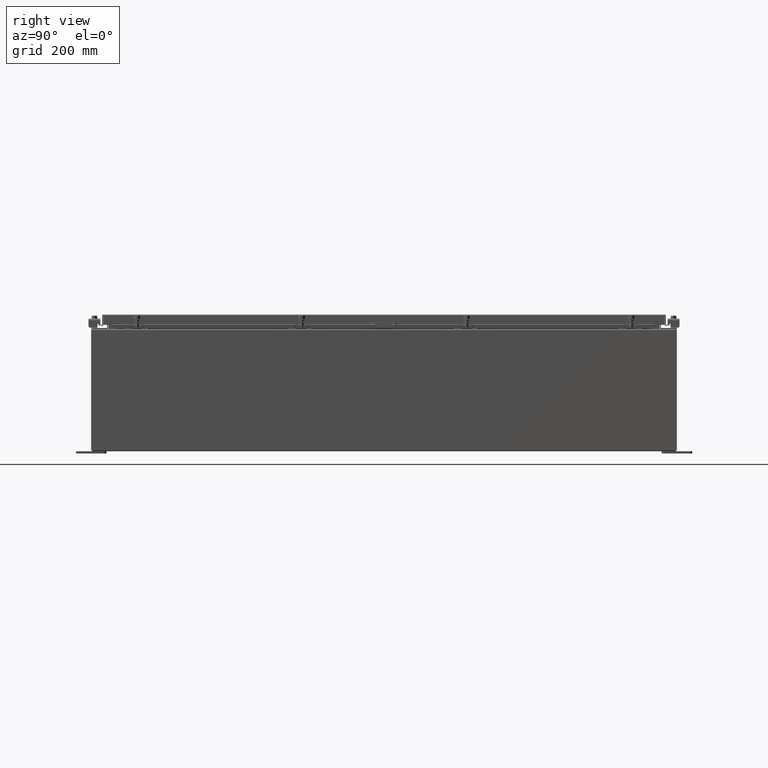
[diagram: clean part render]
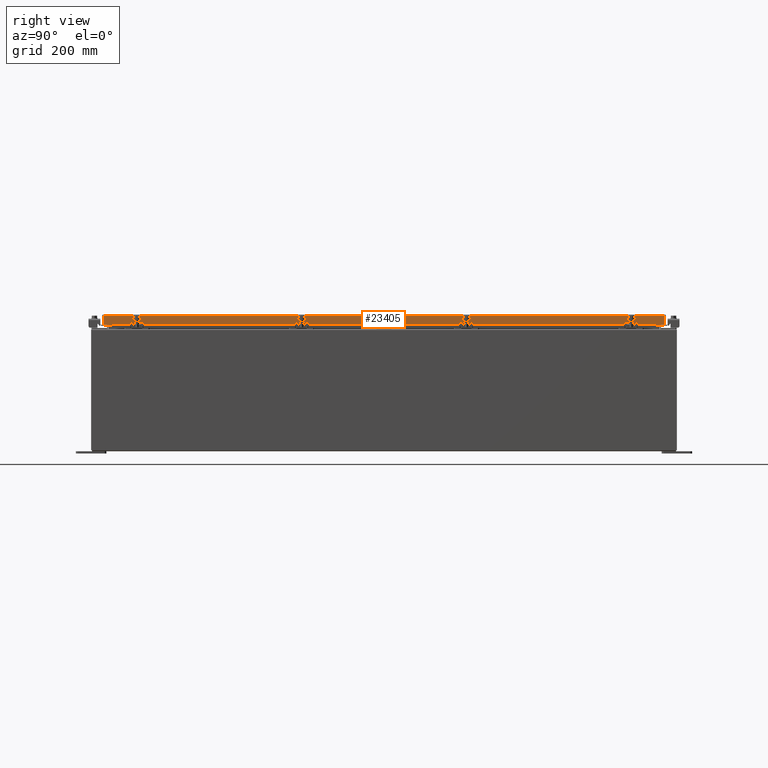
[diagram: same view with one face highlighted and labeled with its STEP entity id]
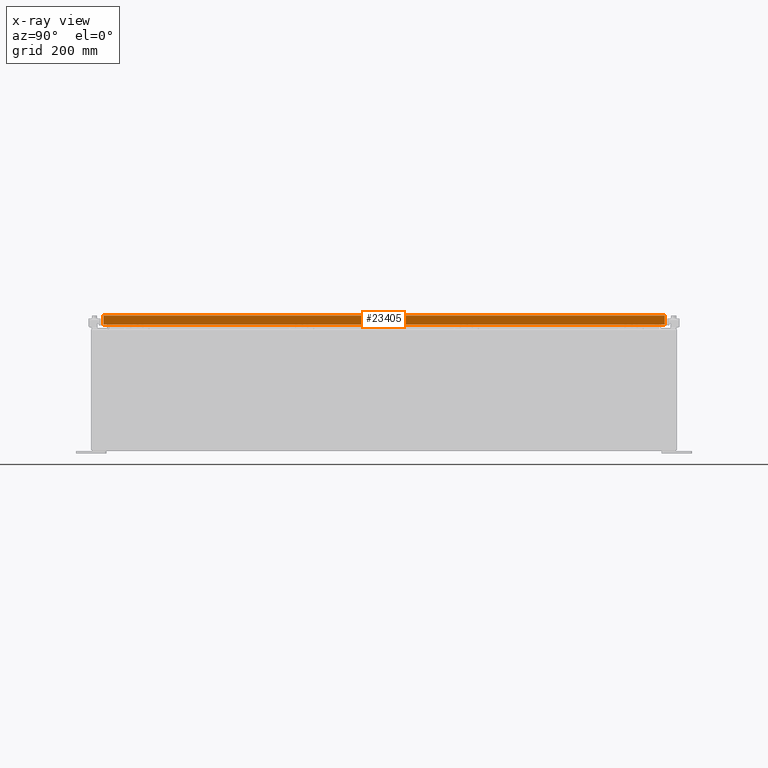
[diagram: x-ray of the same camera — body ghosted, the highlighted face saturated]
A machine part, right view. The second image highlights one B-rep face of the part: STEP entity #23405.
The next image is the same camera in x-ray: the body ghosted, the highlighted face saturated — about 0% of this face is hidden behind the body in this view.
In plain terms, the highlighted planar face has unit normal (1, 0, 0).
Its self-contained STEP definition (entity closure, byte-faithful):
#579 = EDGE_CURVE ( 'NONE', #26290, #13619, #50463, .T. ) ;
#3216 = LINE ( 'NONE', #49494, #11459 ) ;
#4426 = VERTEX_POINT ( 'NONE', #4676 ) ;
#4676 = CARTESIAN_POINT ( 'NONE',  ( 14.07799999999999800, 23.00515786437627200, -0.08770000000000007000 ) ) ;
#5926 = ORIENTED_EDGE ( 'NONE', *, *, #579, .F. ) ;
#5998 = DIRECTION ( 'NONE',  ( 2.818880942772360100E-015, 0.0000000000000000000, -1.000000000000000000 ) ) ;
#6337 = AXIS2_PLACEMENT_3D ( 'NONE', #18007, #30122, #5998 ) ;
#6370 = ORIENTED_EDGE ( 'NONE', *, *, #51118, .F. ) ;
#6933 = VECTOR ( 'NONE', #46312, 39.37007874015748100 ) ;
#7066 = LINE ( 'NONE', #9757, #31021 ) ;
#9742 = CARTESIAN_POINT ( 'NONE',  ( 14.07799999999999900, 23.00515786437628000, -0.8499999999999996400 ) ) ;
#9757 = CARTESIAN_POINT ( 'NONE',  ( 14.07799999999999800, -23.00515786437626900, -0.07469999999999978000 ) ) ;
#11247 = EDGE_CURVE ( 'NONE', #26290, #4426, #38479, .T. ) ;
#11459 = VECTOR ( 'NONE', #13440, 39.37007874015748100 ) ;
#11977 = EDGE_CURVE ( 'NONE', #4426, #44853, #49753, .T. ) ;
#13440 = DIRECTION ( 'NONE',  ( 0.0000000000000000000, -1.000000000000000000, 0.0000000000000000000 ) ) ;
#13619 = VERTEX_POINT ( 'NONE', #32750 ) ;
#13708 = VERTEX_POINT ( 'NONE', #30344 ) ;
#18007 = CARTESIAN_POINT ( 'NONE',  ( 14.07799999999999800, 0.0000000000000000000, 3.994501956836086200E-014 ) ) ;
#19898 = ORIENTED_EDGE ( 'NONE', *, *, #30127, .F. ) ;
#21713 = VERTEX_POINT ( 'NONE', #29824 ) ;
#22466 = EDGE_CURVE ( 'NONE', #13619, #13708, #49345, .T. ) ;
#23219 = DIRECTION ( 'NONE',  ( 0.0000000000000000000, -1.000000000000000000, 0.0000000000000000000 ) ) ;
#23349 = CARTESIAN_POINT ( 'NONE',  ( 14.07799999999999800, -23.00515786437626900, -0.08770000000000007000 ) ) ;
#23405 = ADVANCED_FACE ( 'NONE', ( #46753 ), #26091, .T. ) ;
#26091 = PLANE ( 'NONE',  #6337 ) ;
#26290 = VERTEX_POINT ( 'NONE', #9742 ) ;
#29824 = CARTESIAN_POINT ( 'NONE',  ( 14.07799999999999900, -23.00515786437626200, -0.8499999999999996400 ) ) ;
#29827 = DIRECTION ( 'NONE',  ( -2.818880942772360100E-015, -6.982962677686267500E-015, 1.000000000000000000 ) ) ;
#30122 = DIRECTION ( 'NONE',  ( 1.000000000000000000, 0.0000000000000000000, 2.818880942772360100E-015 ) ) ;
#30125 = ORIENTED_EDGE ( 'NONE', *, *, #11977, .T. ) ;
#30127 = EDGE_CURVE ( 'NONE', #21713, #44853, #7066, .T. ) ;
#30344 = CARTESIAN_POINT ( 'NONE',  ( 14.07799999999999400, -22.25515786437626200, -0.8500000000000010900 ) ) ;
#30979 = CARTESIAN_POINT ( 'NONE',  ( 14.07799999999999400, 22.25515786437628000, -0.8500000000000010900 ) ) ;
#31021 = VECTOR ( 'NONE', #29827, 39.37007874015748100 ) ;
#32750 = CARTESIAN_POINT ( 'NONE',  ( 14.07799999999999400, 22.25515786437627200, -0.8500000000000010900 ) ) ;
#33994 = DIRECTION ( 'NONE',  ( -2.818880942772360100E-015, -6.982962677686267500E-015, 1.000000000000000000 ) ) ;
#34067 = CARTESIAN_POINT ( 'NONE',  ( 14.07799999999999800, 23.00515786437627600, 2.005891783295811300E-013 ) ) ;
#38479 = LINE ( 'NONE', #34067, #50436 ) ;
#38630 = VECTOR ( 'NONE', #23219, 39.37007874015748100 ) ;
#39204 = CARTESIAN_POINT ( 'NONE',  ( 14.07799999999999900, -23.09400000000000100, -0.8499999999999996400 ) ) ;
#39566 = ORIENTED_EDGE ( 'NONE', *, *, #11247, .T. ) ;
#40179 = ORIENTED_EDGE ( 'NONE', *, *, #22466, .F. ) ;
#41024 = DIRECTION ( 'NONE',  ( 0.0000000000000000000, -1.000000000000000000, 0.0000000000000000000 ) ) ;
#43157 = EDGE_LOOP ( 'NONE', ( #19898, #6370, #40179, #5926, #39566, #30125 ) ) ;
#44853 = VERTEX_POINT ( 'NONE', #23349 ) ;
#45506 = CARTESIAN_POINT ( 'NONE',  ( 14.07799999999999800, 0.0000000000000000000, -0.08770000000000007000 ) ) ;
#46312 = DIRECTION ( 'NONE',  ( 0.0000000000000000000, -1.000000000000000000, 0.0000000000000000000 ) ) ;
#46753 = FACE_OUTER_BOUND ( 'NONE', #43157, .T. ) ;
#49224 = VECTOR ( 'NONE', #41024, 39.37007874015748100 ) ;
#49345 = LINE ( 'NONE', #30979, #38630 ) ;
#49494 = CARTESIAN_POINT ( 'NONE',  ( 14.07799999999999900, -23.09400000000000100, -0.8499999999999996400 ) ) ;
#49753 = LINE ( 'NONE', #45506, #6933 ) ;
#50436 = VECTOR ( 'NONE', #33994, 39.37007874015748100 ) ;
#50463 = LINE ( 'NONE', #39204, #49224 ) ;
#51118 = EDGE_CURVE ( 'NONE', #13708, #21713, #3216, .T. ) ;